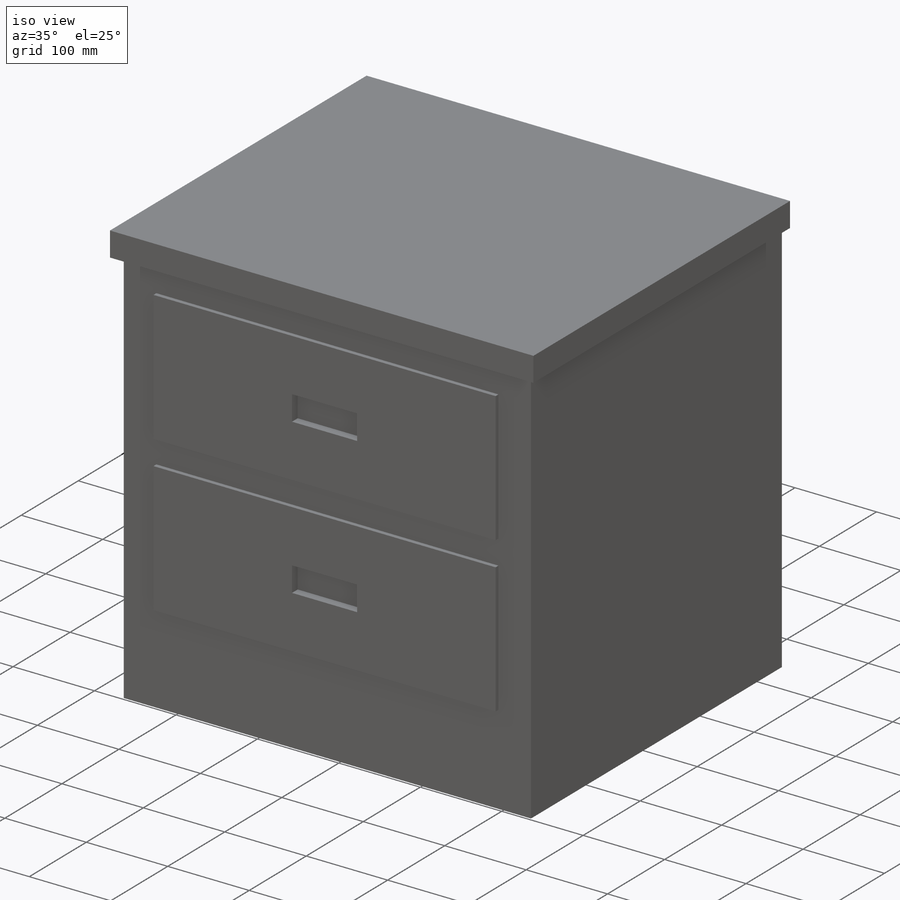
[diagram: iso view]
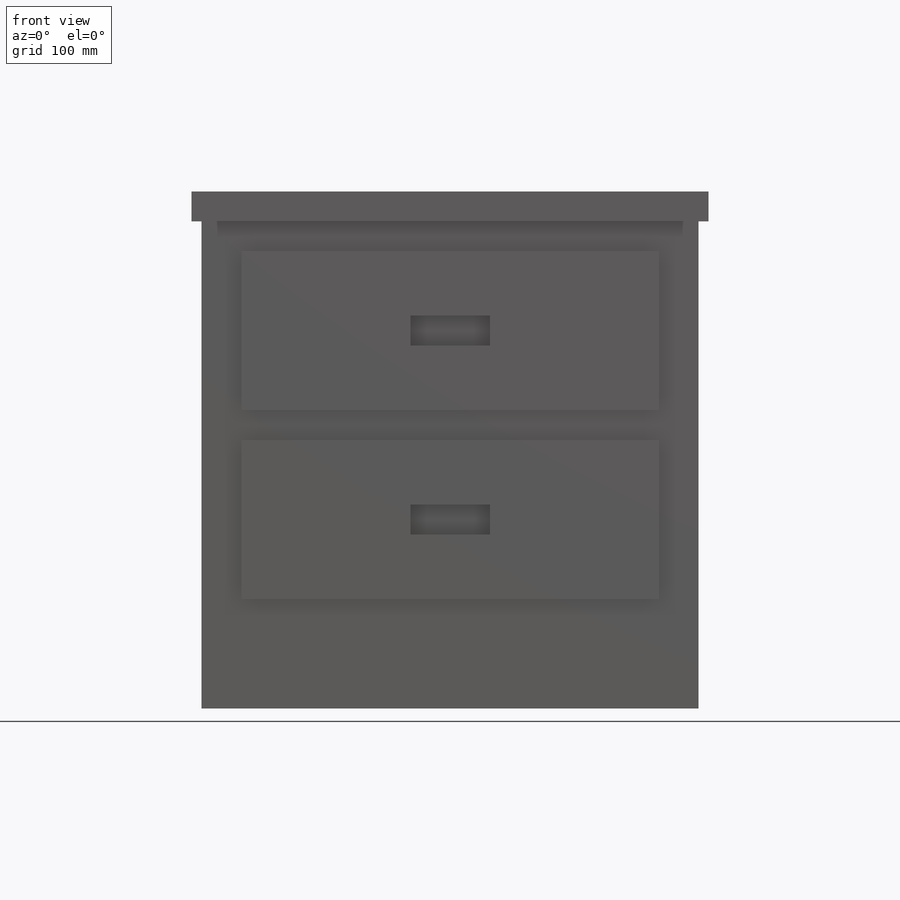
[diagram: front view]
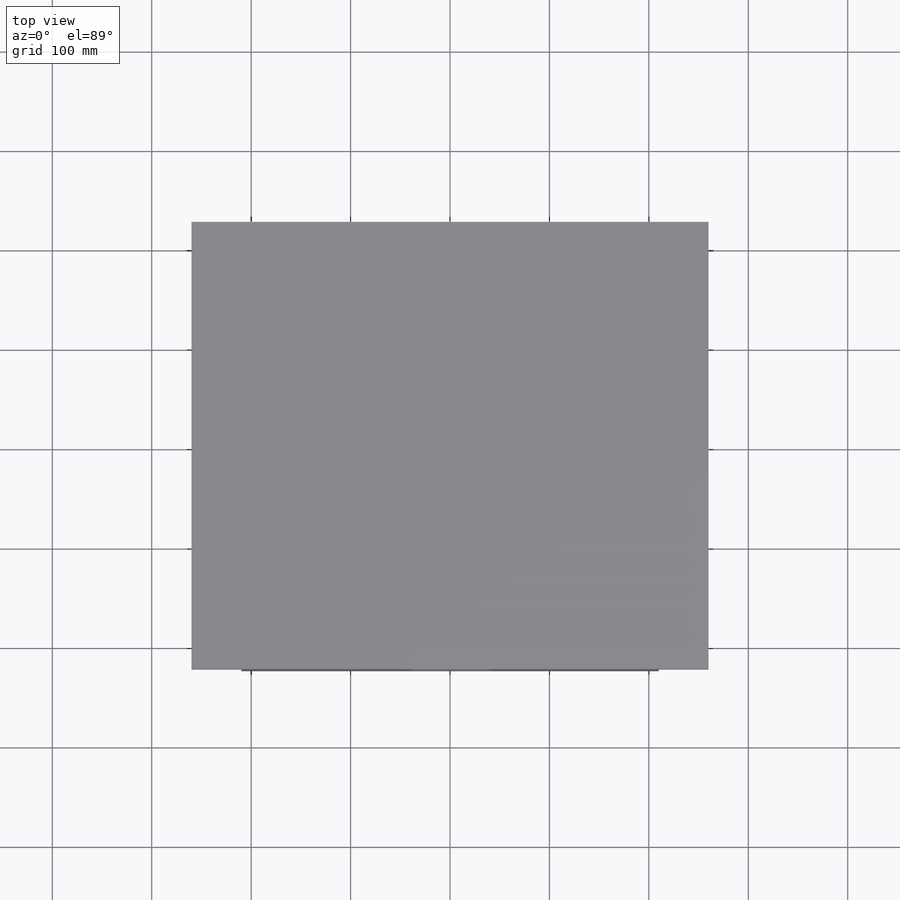
[diagram: top view]
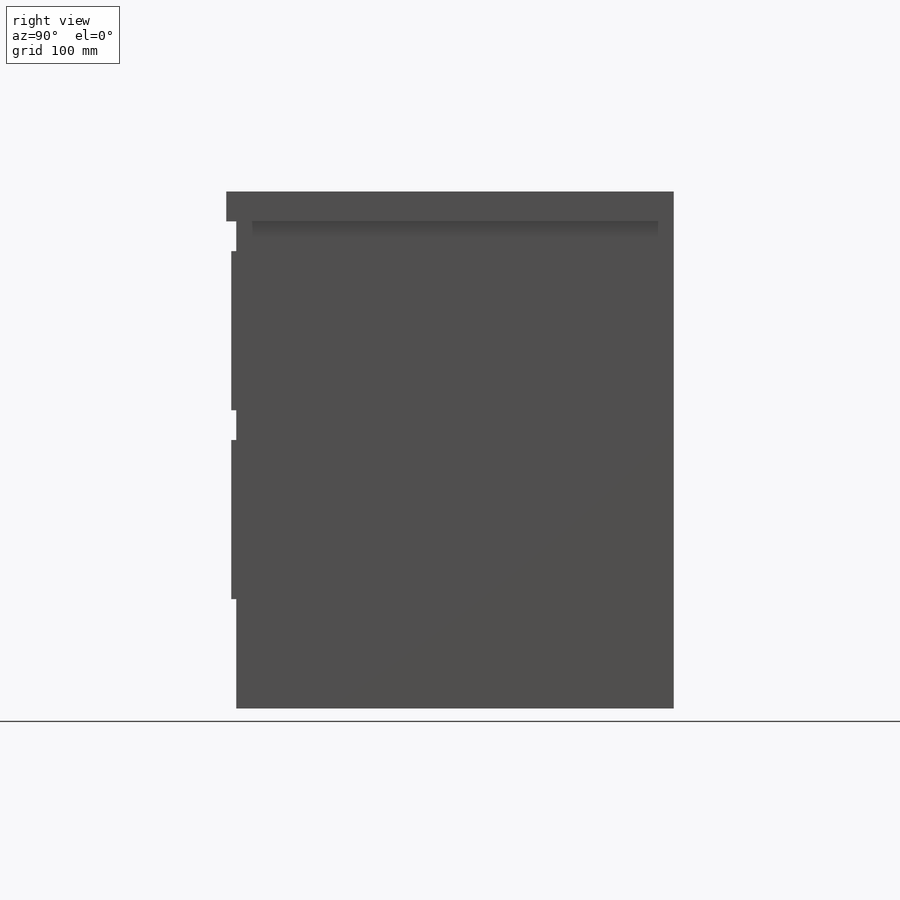
[diagram: right view]
SOLIDWORKS PART (.sldprt)
format: sldprt  version: not decoded by parser v0  size: 599,552 bytes
history: native  units: mm
features: sketch x4, plane x3, extrude x3, material x1, cut_extrude x1, pattern_linear x1 (+9 scaffold rows collapsed)
feature tree (22):
  scaffold x9  (default folders/planes/origin — collapsed)
  material  "红木"
  plane  "前视基准面"
  plane  "上视基准面"
  plane  "右视基准面"
  sketch  "草图1"  dims[D1=500.0mm D2=440.0mm]
  extrude  "凸台-拉伸1"  Depth=520mm
  sketch  "草图2"  dims[D1=520.0mm D2=450.0mm]
  extrude  "凸台-拉伸2"  Depth=30mm
  sketch  "草图3"  dims[D1=420.0mm D2=30.0mm D3=160.0mm]
  extrude  "凸台-拉伸3"  Depth=5mm
  sketch  "草图4"  dims[D1=80.0mm]
  cut_extrude  "切除-拉伸2"  Depth=10mm
  pattern_linear  "阵列(线性)1"  Count1=2 Count2=1 Spacing1=190mm Spacing2=10mm
decode coverage: 9 of 9 modeling features carry decoded parameters
note: suppression state not decoded; provenance and decode notes live in map.json
